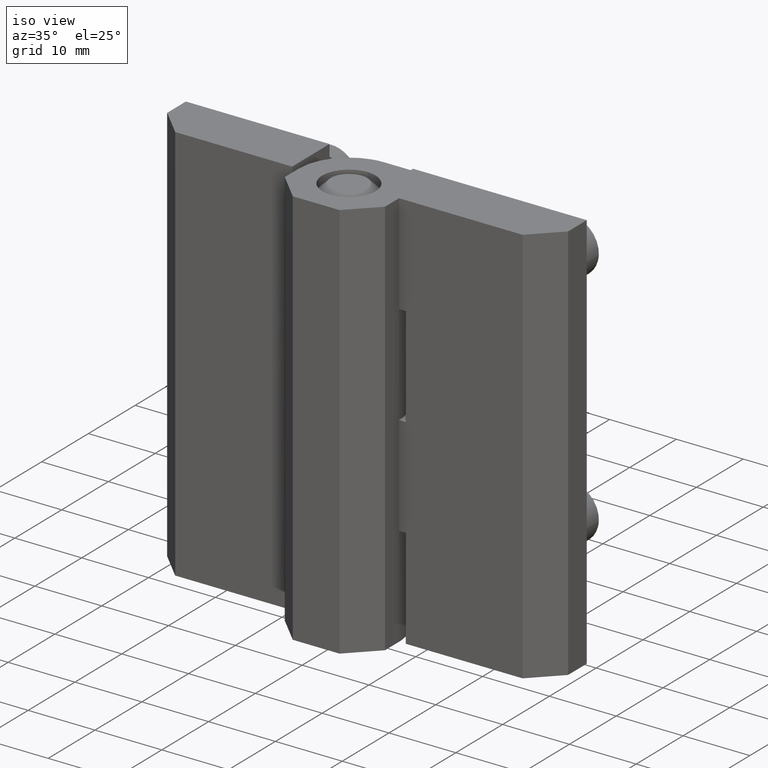
[diagram: clean part render]
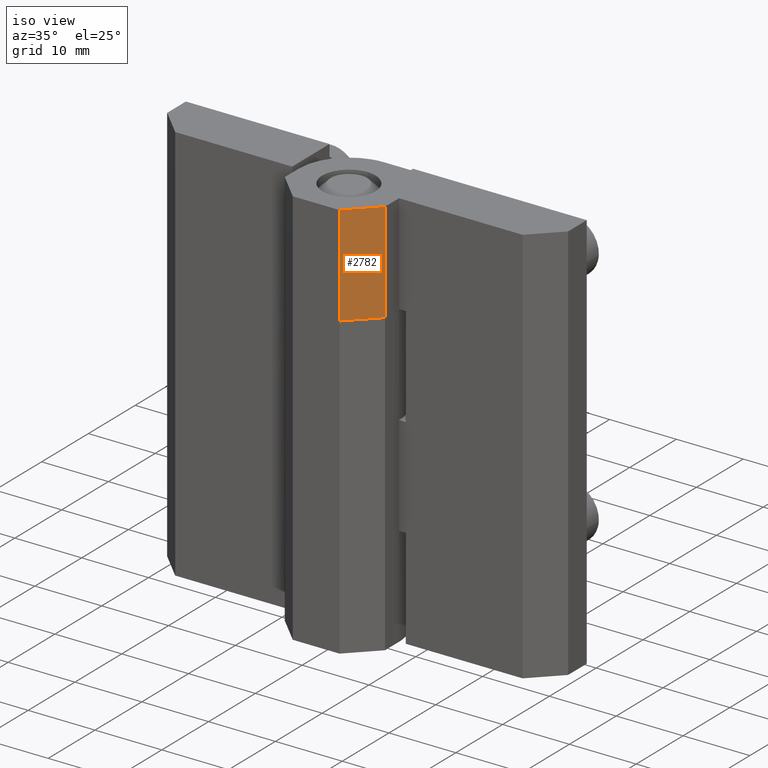
[diagram: same view with one face highlighted and labeled with its STEP entity id]
A machine part, iso view. The second image highlights one B-rep face of the part: STEP entity #2782.
In plain terms, the highlighted face is a freeform B-spline surface patch.
Its self-contained STEP definition (entity closure, byte-faithful):
#2143=CARTESIAN_POINT('',(7.500000000000000,-3.0,44.999999999951541));
#2144=VERTEX_POINT('',#2143);
#2152=CARTESIAN_POINT('',(3.500000000000115,-7.0,44.999999999942901));
#2153=VERTEX_POINT('',#2152);
#2154=CARTESIAN_POINT('',(3.500000000000115,-7.0,44.999999999942901));
#2155=CARTESIAN_POINT('',(7.500000000000000,-3.0,44.999999999951541));
#2156=QUASI_UNIFORM_CURVE('',1,(#2154,#2155),.UNSPECIFIED.,.F.,.U.);
#2157=EDGE_CURVE('',#2153,#2144,#2156,.T.);
#2413=CARTESIAN_POINT('',(3.500000000000115,-7.0,60.0));
#2414=VERTEX_POINT('',#2413);
#2420=CARTESIAN_POINT('',(7.500000000000000,-3.0,60.0));
#2421=VERTEX_POINT('',#2420);
#2422=CARTESIAN_POINT('',(7.500000000000000,-3.0,60.0));
#2423=CARTESIAN_POINT('',(3.500000000000115,-7.0,60.0));
#2424=QUASI_UNIFORM_CURVE('',1,(#2422,#2423),.UNSPECIFIED.,.F.,.U.);
#2425=EDGE_CURVE('',#2421,#2414,#2424,.T.);
#2742=CARTESIAN_POINT('',(3.500000000000115,-7.0,60.0));
#2743=CARTESIAN_POINT('',(3.500000000000115,-7.0,44.999999999942901));
#2744=QUASI_UNIFORM_CURVE('',1,(#2742,#2743),.UNSPECIFIED.,.F.,.U.);
#2745=EDGE_CURVE('',#2414,#2153,#2744,.T.);
#2767=CARTESIAN_POINT('',(3.300200007752899,-7.199799992247227,44.250750029012963));
#2768=CARTESIAN_POINT('',(7.699800099535578,-2.800199900464415,44.250750029012963));
#2769=CARTESIAN_POINT('',(3.300200007752899,-7.199799992247226,60.749250373261290));
#2770=CARTESIAN_POINT('',(7.699800099535578,-2.800199900464415,60.749250373261290));
#2771=B_SPLINE_SURFACE_WITH_KNOTS('',1,1,((#2767,#2769),(#2768,#2770)),.UNSPECIFIED.,.F.,.F.,.U.,(2,2),(2,2),(0.0,6.221974118817073),(0.0,16.498500344248342),.UNSPECIFIED.);
#2772=ORIENTED_EDGE('',*,*,#2745,.T.);
#2773=ORIENTED_EDGE('',*,*,#2157,.T.);
#2774=CARTESIAN_POINT('',(7.500000000000000,-3.0,60.0));
#2775=CARTESIAN_POINT('',(7.500000000000000,-3.0,44.999999999951541));
#2776=QUASI_UNIFORM_CURVE('',1,(#2774,#2775),.UNSPECIFIED.,.F.,.U.);
#2777=EDGE_CURVE('',#2421,#2144,#2776,.T.);
#2778=ORIENTED_EDGE('',*,*,#2777,.F.);
#2779=ORIENTED_EDGE('',*,*,#2425,.T.);
#2780=EDGE_LOOP('',(#2772,#2773,#2778,#2779));
#2781=FACE_OUTER_BOUND('',#2780,.T.);
#2782=ADVANCED_FACE('',(#2781),#2771,.T.);